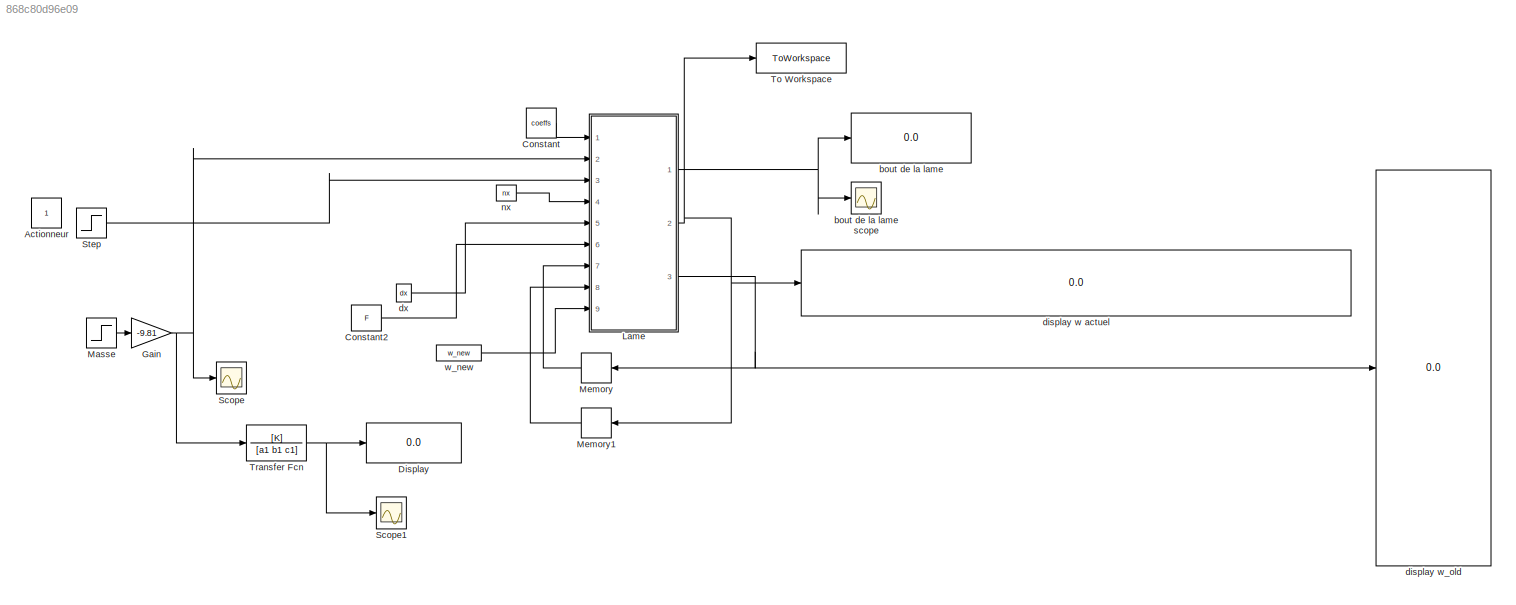
MODEL slx_868c80d96e09
KIND model
CONFIG AbsTol = auto
CONFIG EnableMultiTasking = off
CONFIG FixedStep = auto
CONFIG MaxStep = auto
CONFIG MinStep = auto
CONFIG RelTol = 1e-3
CONFIG SampleTimeConstraint = Unconstrained
CONFIG Solver = VariableStepAuto
CONFIG SolverName = VariableStepAuto
CONFIG StartTime = 0.0
CONFIG StopTime = 3
WORKSPACE source: mxarray member
WORKSPACE F = [0 0 0 0 0 0 0 0 0 0 0 0 ... (21 elements, 1x21)]
WORKSPACE K = 1
WORKSPACE a1 = 0.000261007117673
WORKSPACE b1 = 0.618793924538
WORKSPACE c1 = 77.6367098126
WORKSPACE coeffs = [11319432.2907 569821497 46409.5443403 1.75479262565e-09]
WORKSPACE dt = 2e-05
WORKSPACE dx = 0.0133333333333
WORKSPACE nx = 21
WORKSPACE w = [0 0 0 0 0 0 0 0 0 0 0 0 ... (21 elements, 1x21)]
WORKSPACE w_init = [1 2 3 4 5 6 7 8 9 10 11 12 ... (21 elements, 1x21)]
WORKSPACE w_new = [0 0 0 0 0 0 0 0 0 0 0 0 ... (21 elements, 1x21)]
WORKSPACE w_old = [0 0 0 0 0 0 0 0 0 0 0 0 ... (21 elements, 1x21)]
BLOCK [Constant] Actionneur
  SampleTime = dt
BLOCK [Constant] Constant
  SampleTime = dt
  Value = coeffs
BLOCK [Constant] Constant2
  SampleTime = dt
  Value = F
BLOCK [Display] Display
  Commented = on
  Decimation = 1
  Ports = [1]
BLOCK [Gain] Gain
  Gain = -9.81
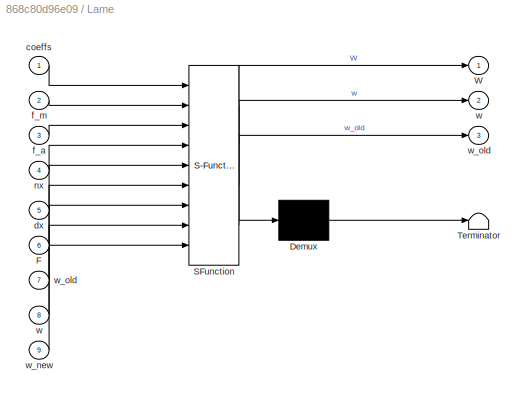
BLOCK [SubSystem] Lame
  ErrorFcn = Stateflow.Translate.translate
  PermitHierarchicalResolution = ExplicitOnly
  Ports = [9, 3]
  RequestExecContextInheritance = off
  SFBlockType = MATLAB Function
  TreatAsAtomicUnit = on
BLOCK [Demux] Lame/ Demux 
  Outputs = 1
  Ports = [1, 1]
BLOCK [S-Function] Lame/ SFunction 
  EnableBusSupport = on
  FunctionName = sf_sfun
  PortCounts = [9 4]
  Ports = [9, 4]
  SFcnIsStateOwnerBlock = off
  SFunctionDeploymentMode = off
  Tag = Stateflow S-Function 2
BLOCK [Terminator] Lame/ Terminator 
BLOCK [Inport] Lame/F
  Port = 6
BLOCK [Outport] Lame/W
BLOCK [Inport] Lame/coeffs
BLOCK [Inport] Lame/dx
  Port = 5
BLOCK [Inport] Lame/f_a
  Port = 3
BLOCK [Inport] Lame/f_m
  Port = 2
BLOCK [Inport] Lame/nx
  Port = 4
BLOCK [Outport] Lame/w
  Port = 2
BLOCK [Inport] Lame/w 
  Port = 8
BLOCK [Inport] Lame/w_new
  Port = 9
BLOCK [Outport] Lame/w_old
  Port = 3
BLOCK [Inport] Lame/w_old 
  Port = 7
BLOCK [Step] Masse
  After = 0
  SampleTime = dt
  Time = 0.5
BLOCK [Memory] Memory
  InitialCondition = zeros(1,nx)
BLOCK [Memory] Memory1
  InitialCondition = zeros(1,nx)
BLOCK [Scope] Scope
  Floating = off
  NumInputPorts = 1
  Ports = [1]
  ScopeSpecificationString = Simulink.scopes.TimeScopeBlockCfg('CurrentConfiguration', extmgr.ConfigurationSet(extmgr.Configuration('Core','General UI',true),extmgr.Configuration('Core','Source UI',true),extmgr.Configuration('Sources','WiredSimulink',true,'DataLoggingVariableName','ScopeData1'),extmgr.Configuration('Visuals','Time Domain',true,'SerializedDisplays',{struct('MinYLimReal','-1.00000','MaxYLimReal','1.00000','YLab...<+1363ch>
BLOCK [Scope] Scope1
  Commented = on
  Floating = off
  NumInputPorts = 1
  Ports = [1]
  ScopeSpecificationString = Simulink.scopes.TimeScopeBlockCfg('CurrentConfiguration', extmgr.ConfigurationSet(extmgr.Configuration('Core','General UI',true),extmgr.Configuration('Core','Source UI',true),extmgr.Configuration('Sources','WiredSimulink',true,'DataLoggingVariableName','ScopeData2'),extmgr.Configuration('Visuals','Time Domain',true,'SerializedDisplays',{struct('MinYLimReal','-0.00284','MaxYLimReal','0.00032','YLab...<+1424ch>
BLOCK [Step] Step
  SampleTime = dt
  Time = 0.5
BLOCK [ToWorkspace] To Workspace
  FixptAsFi = on
  MaxDataPoints = inf
  Ports = [1]
  SampleTime = -1
  SaveFormat = Timeseries
  VariableName = w_out
BLOCK [TransferFcn] Transfer Fcn
  Commented = on
  Denominator = [a1 b1 c1]
  Numerator = [K]
BLOCK [Display] bout de la lame
  Decimation = 1
  Ports = [1]
BLOCK [Scope] bout de la lame scope
  Floating = off
  NumInputPorts = 1
  Ports = [1]
  ScopeSpecificationString = Simulink.scopes.TimeScopeBlockCfg('CurrentConfiguration', extmgr.ConfigurationSet(extmgr.Configuration('Core','General UI',true),extmgr.Configuration('Core','Source UI',true),extmgr.Configuration('Sources','WiredSimulink',true),extmgr.Configuration('Visuals','Time Domain',true,'SerializedDisplays',{struct('MinYLimReal','-0.00144','MaxYLimReal','0.01115','YLabelReal','','MinYLimMag','0.00000','MaxY...<+1398ch>
BLOCK [Display] display w actuel
  Decimation = 1
  Ports = [1]
BLOCK [Display] display w_old
  Decimation = 1
  Ports = [1]
BLOCK [Constant] dx
  SampleTime = dt
  Value = dx
BLOCK [Constant] nx
  SampleTime = dt
  Value = nx
BLOCK [Constant] w_new
  SampleTime = dt
  Value = w_new
LINE Constant2:1 -> Lame:6
LINE Constant:1 -> Lame:1
NET Gain:1 -> Lame:2, Scope:1, Transfer Fcn:1
NET Lame:1 -> bout de la lame scope:1, bout de la lame:1
NET Lame:2 -> Memory1:1, To Workspace:1, display w actuel:1
NET Lame:3 -> Memory:1, display w_old:1
LINE Masse:1 -> Gain:1
LINE Memory1:1 -> Lame:8
LINE Memory:1 -> Lame:7
LINE Step:1 -> Lame:3
NET Transfer Fcn:1 -> Display:1, Scope1:1
LINE dx:1 -> Lame:5
LINE nx:1 -> Lame:4
LINE w_new:1 -> Lame:9
note: NET lines group one-source signal fan-out (src -> all destinations, sorted); 1:1 wires keep LINE
CHART Lame states=1 transitions=1
  STATE_LABEL 'eML_blk_kernel()'
  STATE_LABEL 'SCRIPT:\nfunction [W, w, w_old] = fcn(coeffs, f_m, f_a, nx, dx, F, w_old, w, w_new) \n     \n    % La force\n    F(round(nx/2)) = f_a + f_m;\n\n    for i = 3:nx-2\n        \n        %Équation différentielle résolue par Sam\n        w_new(i) = (-coeffs(1)*(w(i+2)-4*w(i+1)+6*w(i)-4*w(i-1)+w(i-2)) - coeffs(2)*(-2*w(i)+w_old(i)) + coeffs(3)*w(i) + F(i)/dx)*coeffs(4);\n\n        %% Conditions limites \n        w_n...<+376ch>'
